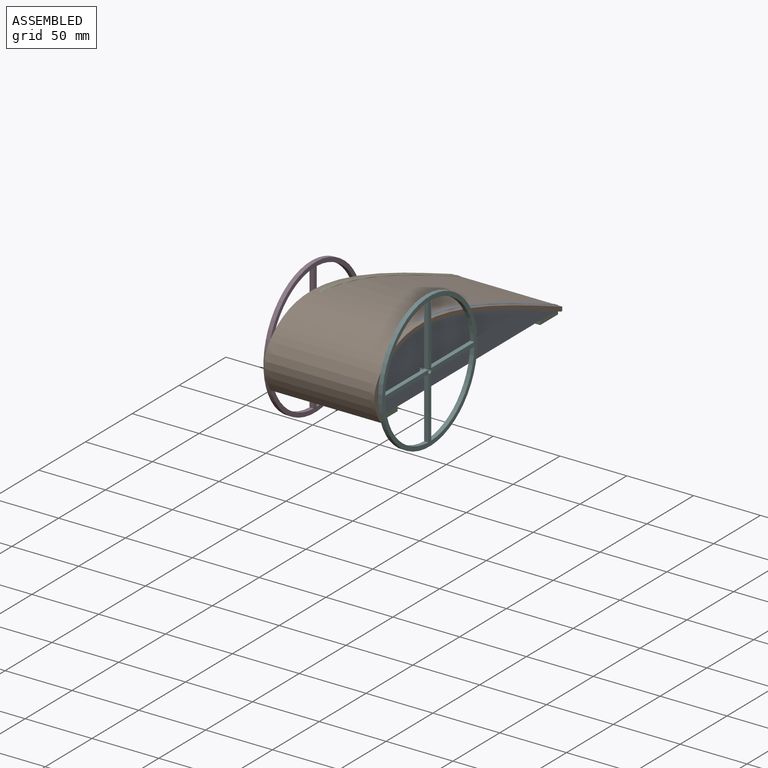
[diagram: assembled view]
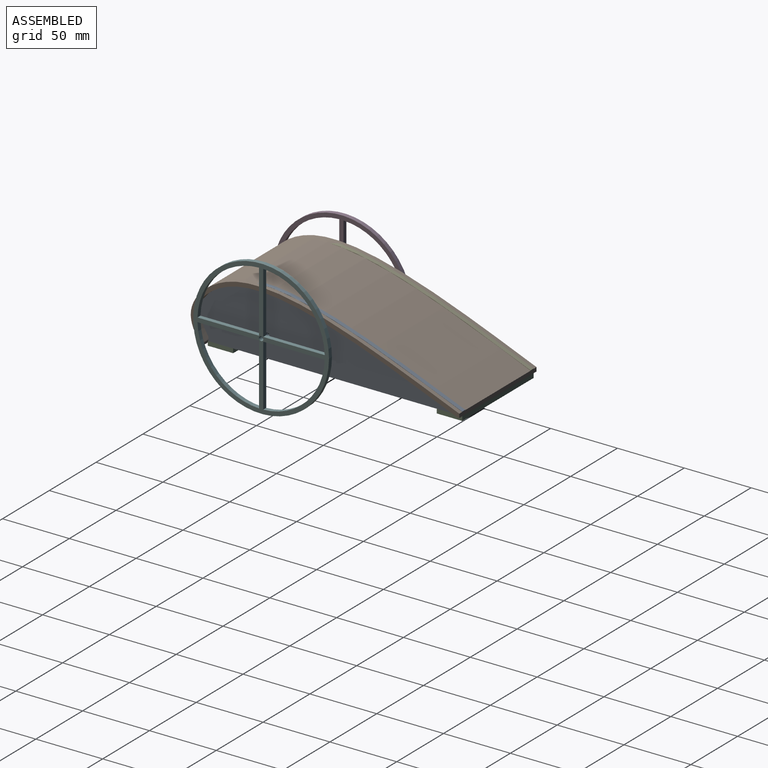
[diagram: assembled view, second angle]
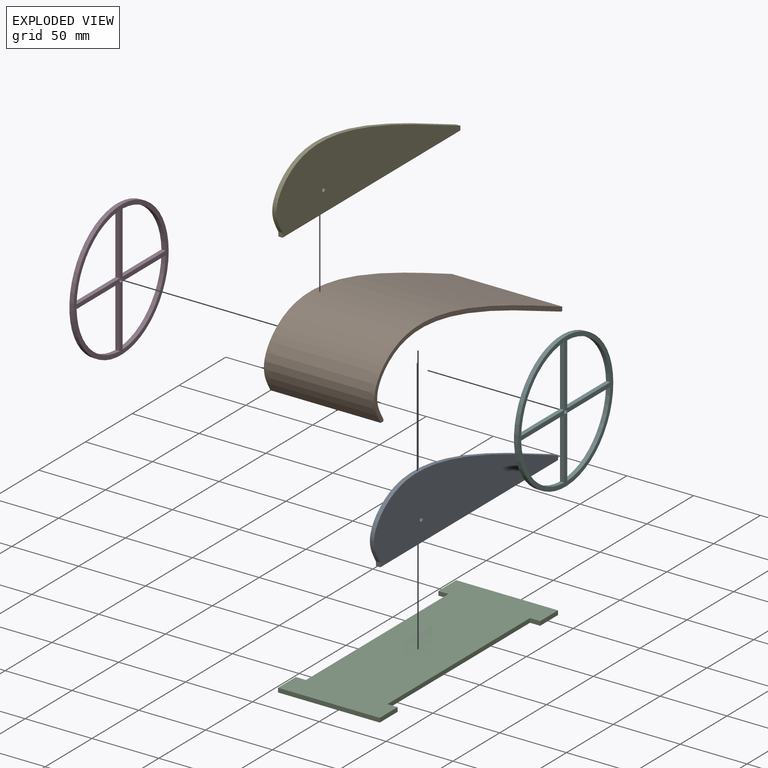
[diagram: exploded view]
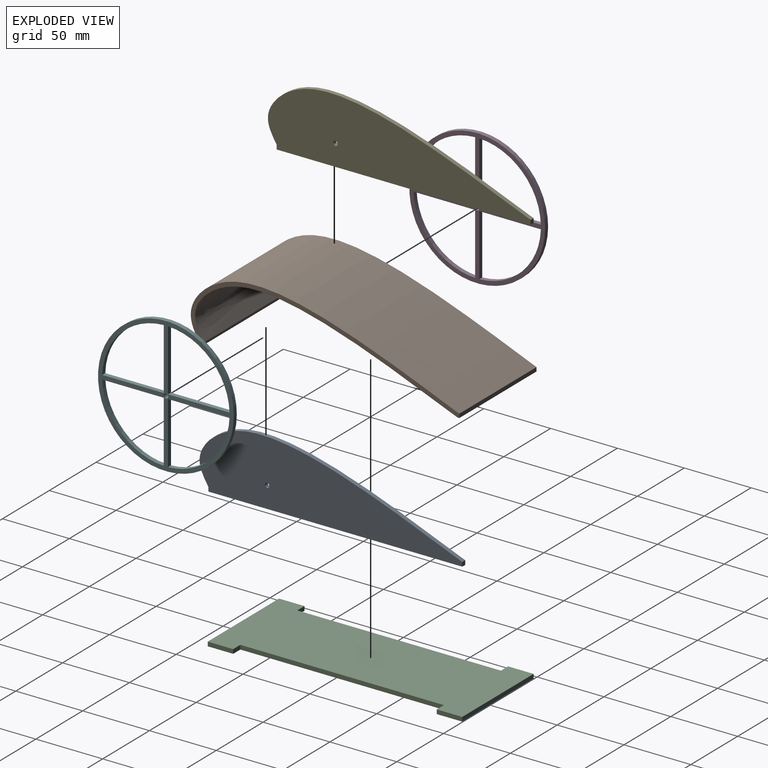
[diagram: exploded view, second angle]
ASSEMBLY  parts=6 mates=5
PART A: 7 faces, bbox 53.4x201x3.2 mm
  f0: extruded ~196.51x45.81mm, area 748.7mm2, adj f1,f4,f5,f6
  f1: plane 3.18x3.18mm, normal (0,-1,0), area 10.1mm2, adj f0,f2,f5,f6
  f2: plane 189.96x3.18mm, normal (1,0,0), area 603.1mm2, adj f1,f4,f5,f6
  f3: cylinder r=1.65mm len=3.3mm, axis (0,0,-1), area 32.9mm2, adj f5,f6
  f4: plane 3.18x3.18mm, normal (0,1,0), area 10.1mm2, adj f0,f2,f5,f6
  f5: plane 201.03x53.36mm, normal (0,0,1), area 6473.6mm2, adj f0,f1,f2,f3,f4
  f6: plane 201.03x53.36mm, normal (0,0,-1), area 6473.6mm2, adj f0,f1,f2,f3,f4
PART B: 8 faces, bbox 202.2x82.6x51.9 mm
  f0: extruded ~200.88x82.55mm, area 20125.1mm2, adj f1,f5,f6,f7
  f1: plane 82.55x2.69mm, normal (0,0,-1), area 222.4mm2, adj f0,f2,f6,f7
  f2: plane 82.55x1.68mm, normal (1,0,0), area 138.7mm2, adj f1,f3,f6,f7
  f3: extruded ~196.51x82.55mm, area 19465.8mm2, adj f2,f4,f6,f7
  f4: plane 82.55x1.2mm, normal (0,0,-1), area 99mm2, adj f3,f5,f6,f7
  f5: plane 82.55x2.94mm, normal (1,0,0), area 242.7mm2, adj f0,f4,f6,f7
  f6: plane 202.23x51.87mm, normal (0,-1,0), area 765mm2, adj f0,f1,f2,f3,f4,f5
  f7: plane 202.23x51.87mm, normal (0,1,0), area 765mm2, adj f0,f1,f2,f3,f4,f5
PART C: 14 faces, bbox 76.2x190.4x3.2 mm
  f0: plane 19.05x3.18mm, normal (1,0,0), area 60.5mm2, adj f1,f11,f12,f13
  f1: plane 76.2x3.18mm, normal (0,1,0), area 241.9mm2, adj f0,f2,f12,f13
  f2: plane 19.05x3.18mm, normal (-1,0,0), area 60.5mm2, adj f1,f3,f12,f13
  f3: plane 7.62x3.18mm, normal (0,-1,0), area 24.2mm2, adj f2,f4,f12,f13
  f4: plane 152.32x3.18mm, normal (-1,0,0), area 483.6mm2, adj f3,f5,f12,f13
  f5: plane 7.62x3.18mm, normal (0,1,0), area 24.2mm2, adj f4,f6,f12,f13
  f6: plane 19.05x3.18mm, normal (-1,0,0), area 60.5mm2, adj f5,f7,f12,f13
  f7: plane 76.2x3.18mm, normal (0,-1,0), area 241.9mm2, adj f6,f8,f12,f13
  f8: plane 19.05x3.18mm, normal (1,0,0), area 60.5mm2, adj f7,f9,f12,f13
  f9: plane 7.62x3.18mm, normal (0,1,0), area 24.2mm2, adj f8,f10,f12,f13
  f10: plane 152.32x3.18mm, normal (1,0,0), area 483.6mm2, adj f9,f11,f12,f13
  f11: plane 7.62x3.18mm, normal (0,-1,0), area 24.2mm2, adj f0,f10,f12,f13
  f12: plane 190.42x76.2mm, normal (0,0,1), area 12188.9mm2, adj f0,f1,f2,f3,f4,f5,f6,f7
  f13: plane 190.42x76.2mm, normal (0,0,-1), area 12188.9mm2, adj f0,f1,f2,f3,f4,f5,f6,f7
PART D: 16 faces, bbox 101.6x101.6x3.2 mm
  f0: plane 46.01x3.18mm, normal (0,1,0), area 146.1mm2, adj f1,f8,f14,f15
  f1: cylinder r=47.62mm len=46.01mm, axis (0,0,-1), area 227.4mm2, adj f0,f8,f14,f15
  f2: cylinder r=47.62mm len=46.01mm, axis (0,0,-1), area 227.4mm2, adj f3,f9,f14,f15
  f3: plane 46.01x3.18mm, normal (0,-1,0), area 146.1mm2, adj f2,f9,f14,f15
  f4: cylinder r=47.62mm len=46.01mm, axis (0,0,-1), area 227.4mm2, adj f5,f10,f14,f15
  f5: plane 46.01x3.18mm, normal (0,1,0), area 146.1mm2, adj f4,f10,f14,f15
  f6: plane 46.01x3.18mm, normal (1,0,0), area 146.1mm2, adj f7,f11,f14,f15
  f7: plane 46.01x3.18mm, normal (0,-1,0), area 146.1mm2, adj f6,f11,f14,f15
  f8: plane 46.01x3.18mm, normal (-1,0,0), area 146.1mm2, adj f0,f1,f14,f15
  f9: plane 46.01x3.18mm, normal (-1,0,0), area 146.1mm2, adj f2,f3,f14,f15
  f10: plane 46.01x3.18mm, normal (1,0,0), area 146.1mm2, adj f4,f5,f14,f15
  f11: cylinder r=47.62mm len=46.01mm, axis (0,0,-1), area 227.4mm2, adj f6,f7,f14,f15
  f12: cylinder r=1.65mm len=3.3mm, axis (0,0,-1), area 32.9mm2, adj f14,f15
  f13: cylinder r=50.8mm len=101.6mm, axis (0,0,-1), area 1013.4mm2, adj f14,f15
  f14: plane 101.6x101.6mm, normal (0,0,1), area 1567.5mm2, adj f0,f1,f2,f3,f4,f5,f6,f7
  f15: plane 101.6x101.6mm, normal (0,0,-1), area 1567.5mm2, adj f0,f1,f2,f3,f4,f5,f6,f7
PART E: 7 faces, bbox 53.4x201x3.2 mm
  f0: extruded ~196.51x45.81mm, area 748.6mm2, adj f1,f4,f5,f6
  f1: plane 3.19x3.18mm, normal (0,-1,0), area 10.1mm2, adj f0,f2,f5,f6
  f2: plane 189.97x3.18mm, normal (1,0,0), area 603.1mm2, adj f1,f4,f5,f6
  f3: cylinder r=1.65mm len=3.3mm, axis (0,0,-1), area 32.9mm2, adj f5,f6
  f4: plane 3.18x3.18mm, normal (0,1,0), area 10.1mm2, adj f0,f2,f5,f6
  f5: plane 201.03x53.36mm, normal (0,0,1), area 6473.7mm2, adj f0,f1,f2,f3,f4
  f6: plane 201.03x53.36mm, normal (0,0,-1), area 6473.7mm2, adj f0,f1,f2,f3,f4
PART F: 16 faces, bbox 101.6x101.6x3.2 mm
  f0: plane 46.01x3.18mm, normal (1,0,0), area 146.1mm2, adj f1,f8,f14,f15
  f1: plane 46.01x3.18mm, normal (0,-1,0), area 146.1mm2, adj f0,f8,f14,f15
  f2: cylinder r=47.62mm len=46.01mm, axis (0,0,-1), area 227.4mm2, adj f3,f9,f14,f15
  f3: plane 46.01x3.18mm, normal (0,1,0), area 146.1mm2, adj f2,f9,f14,f15
  f4: cylinder r=47.62mm len=46.01mm, axis (0,0,-1), area 227.4mm2, adj f5,f10,f14,f15
  f5: plane 46.01x3.18mm, normal (0,-1,0), area 146.1mm2, adj f4,f10,f14,f15
  f6: plane 46.01x3.18mm, normal (0,1,0), area 146.1mm2, adj f7,f11,f14,f15
  f7: cylinder r=47.62mm len=46.01mm, axis (0,0,-1), area 227.4mm2, adj f6,f11,f14,f15
  f8: cylinder r=47.62mm len=46.01mm, axis (0,0,-1), area 227.4mm2, adj f0,f1,f14,f15
  f9: plane 46.01x3.18mm, normal (1,0,0), area 146.1mm2, adj f2,f3,f14,f15
  f10: plane 46.01x3.18mm, normal (-1,0,0), area 146.1mm2, adj f4,f5,f14,f15
  f11: plane 46.01x3.18mm, normal (-1,0,0), area 146.1mm2, adj f6,f7,f14,f15
  f12: cylinder r=1.65mm len=3.3mm, axis (0,0,-1), area 32.9mm2, adj f14,f15
  f13: cylinder r=50.8mm len=101.6mm, axis (0,0,-1), area 1013.4mm2, adj f14,f15
  f14: plane 101.6x101.6mm, normal (0,0,1), area 1567.5mm2, adj f0,f1,f2,f3,f4,f5,f6,f7
  f15: plane 101.6x101.6mm, normal (0,0,-1), area 1567.5mm2, adj f0,f1,f2,f3,f4,f5,f6,f7
PLACE A rot(axis=(0,1,0),90deg) t=(-67.42,5.47,83.42)mm
PLACE B rot(axis=(0,0,1),90deg) t=(-143.62,89.16,200.14)mm
PLACE C rot(axis=(-1,0,0),0deg) t=(-135.36,1.66,173.85)mm
PLACE D rot(axis=(-0.58,-0.58,0.58),120deg) t=(-143.62,109.61,91.3)mm
PLACE E rot(axis=(0,1,0),90deg) t=(-140.44,21.09,146.71)mm
PLACE F rot(axis=(-0.58,-0.58,0.58),120deg) t=(-57.89,-6.9,91.3)mm
MATE fastened E.f2 <-> C.f12  axis (0,0,-1) through (-140.44,154.06,177.02)mm
MATE cylindrical F.f2 <-> A.f3  axis (-1,0,0) through (-61.07,8.02,192.9)mm
MATE cylindrical E.f3 <-> D.f1  axis (-1,0,0) through (-140.44,8.01,192.9)mm
MATE fastened A.f2 <-> C.f12  axis (0,0,-1) through (-64.24,154.06,177.02)mm
MATE fastened B.f4 <-> C.f12  axis (0,0,-1) through (-102.34,154.06,177.02)mm
